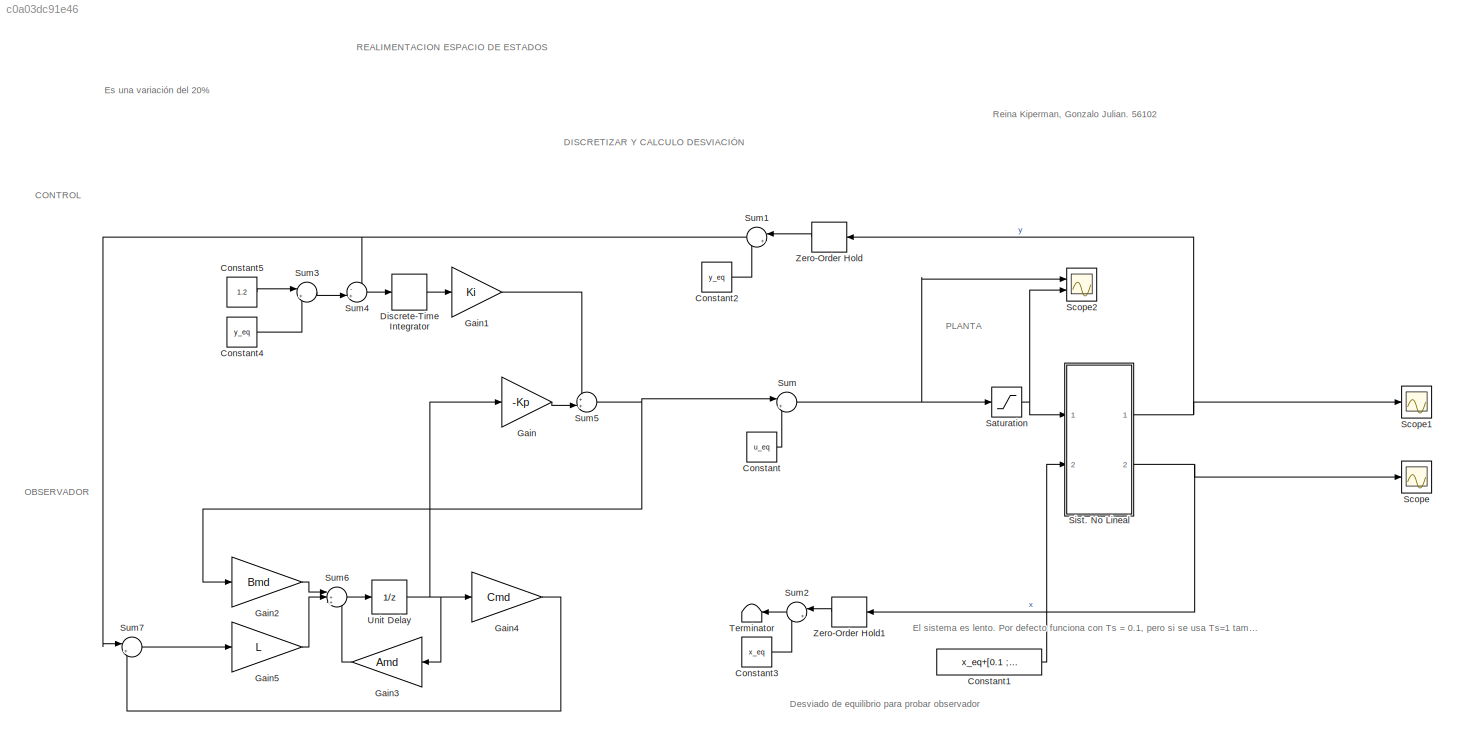
MODEL slx_c0a03dc91e46
KIND model
CONFIG AbsTol = auto
CONFIG EnableMultiTasking = off
CONFIG FixedStep = 0.001
CONFIG MaxStep = auto
CONFIG MinStep = auto
CONFIG RelTol = 1e-3
CONFIG SampleTimeConstraint = Unconstrained
CONFIG Solver = ode45
CONFIG SolverName = ode45
CONFIG StartTime = 0.0
CONFIG StopTime = 25
BLOCK [Constant] Constant
  Value = u_eq
BLOCK [Constant] Constant1
  Value = x_eq+[0.1 ;0.1; 0.1]
BLOCK [Constant] Constant2
  Value = y_eq
BLOCK [Constant] Constant3
  Value = x_eq
BLOCK [Constant] Constant4
  Value = y_eq
BLOCK [Constant] Constant5
  Value = 1.2
BLOCK [DiscreteIntegrator] Discrete-Time Integrator
  ICPrevOutput = DiscIntNeverNeededParam
  ICPrevScaledInput = DiscIntNeverNeededParam
  InitialConditionSetting = Auto
  Ports = [1, 1]
  SampleTime = Ts
BLOCK [Gain] Gain
  Gain = -Kp
  Multiplication = Matrix(K*u)
BLOCK [Gain] Gain1
  Gain = Ki
  Multiplication = Matrix(K*u)
BLOCK [Gain] Gain2
  Gain = Bmd
  Multiplication = Matrix(K*u)
BLOCK [Gain] Gain3
  Gain = Amd
  Multiplication = Matrix(K*u)
BLOCK [Gain] Gain4
  Gain = Cmd
  Multiplication = Matrix(K*u)
BLOCK [Gain] Gain5
  Gain = L
  Multiplication = Matrix(K*u)
BLOCK [Saturate] Saturation
  LowerLimit = 0
  UpperLimit = 2
BLOCK [Scope] Scope
  Floating = off
  NumInputPorts = 1
  Ports = [1]
  ScopeSpecificationString = Simulink.scopes.TimeScopeBlockCfg('CurrentConfiguration', extmgr.ConfigurationSet(extmgr.Configuration('Core','General UI',true),extmgr.Configuration('Core','Source UI',true),extmgr.Configuration('Sources','WiredSimulink',true),extmgr.Configuration('Visuals','Time Domain',true,'SerializedDisplays',{struct('MinYLimReal','0.56359','MaxYLimReal','5.32385','YLabelReal','','MinYLimMag','0.56359','MaxYL...<+1387ch>
BLOCK [Scope] Scope1
  Floating = off
  NumInputPorts = 1
  Ports = [1]
  ScopeSpecificationString = Simulink.scopes.TimeScopeBlockCfg('CurrentConfiguration', extmgr.ConfigurationSet(extmgr.Configuration('Core','General UI',true),extmgr.Configuration('Core','Source UI',true),extmgr.Configuration('Sources','WiredSimulink',true,'DataLoggingVariableName','ScopeData1'),extmgr.Configuration('Visuals','Time Domain',true,'SerializedDisplays',{struct('MinYLimReal','0.99326','MaxYLimReal','1.2568','YLabel...<+1354ch>
BLOCK [Scope] Scope2
  Floating = off
  NumInputPorts = 2
  Ports = [2]
  ScopeSpecificationString = Simulink.scopes.TimeScopeBlockCfg('CurrentConfiguration', extmgr.ConfigurationSet(extmgr.Configuration('Core','General UI',true),extmgr.Configuration('Core','Source UI',true),extmgr.Configuration('Sources','WiredSimulink',true,'DataLoggingVariableName','ScopeData2'),extmgr.Configuration('Visuals','Time Domain',true,'SerializedDisplays',{struct('MinYLimReal','0.36692','MaxYLimReal','2.03374','YLabe...<+2026ch>
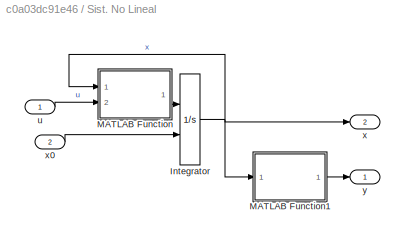
BLOCK [SubSystem] Sist. No Lineal 
  Ports = [2, 2]
  RequestExecContextInheritance = off
BLOCK [Integrator] Sist. No Lineal /Integrator
  InitialConditionSource = external
  Ports = [2, 1]
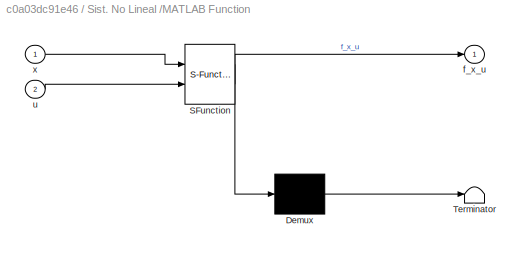
BLOCK [SubSystem] Sist. No Lineal /MATLAB Function
  ErrorFcn = Stateflow.Translate.translate
  PermitHierarchicalResolution = ExplicitOnly
  Ports = [2, 1]
  RequestExecContextInheritance = off
  SFBlockType = MATLAB Function
  TreatAsAtomicUnit = on
BLOCK [Demux] Sist. No Lineal /MATLAB Function/ Demux 
  Outputs = 1
  Ports = [1, 1]
BLOCK [S-Function] Sist. No Lineal /MATLAB Function/ SFunction 
  EnableBusSupport = on
  FunctionName = sf_sfun
  PortCounts = [2 2]
  Ports = [2, 2]
  SFcnIsStateOwnerBlock = off
  SFunctionDeploymentMode = off
  Tag = Stateflow S-Function realimentacion_espacio_estados_exportado2018 1
BLOCK [Terminator] Sist. No Lineal /MATLAB Function/ Terminator 
BLOCK [Outport] Sist. No Lineal /MATLAB Function/f_x_u
  VectorParamsAs1DForOutWhenUnconnected = off
BLOCK [Inport] Sist. No Lineal /MATLAB Function/u
  Port = 2
BLOCK [Inport] Sist. No Lineal /MATLAB Function/x
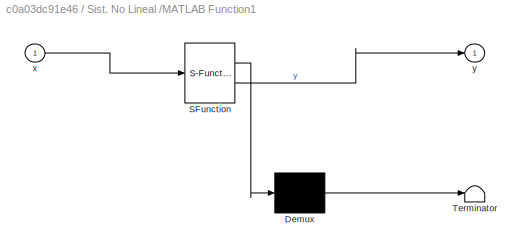
BLOCK [SubSystem] Sist. No Lineal /MATLAB Function1
  ErrorFcn = Stateflow.Translate.translate
  PermitHierarchicalResolution = ExplicitOnly
  Ports = [1, 1]
  RequestExecContextInheritance = off
  SFBlockType = MATLAB Function
  TreatAsAtomicUnit = on
BLOCK [Demux] Sist. No Lineal /MATLAB Function1/ Demux 
  Outputs = 1
  Ports = [1, 1]
BLOCK [S-Function] Sist. No Lineal /MATLAB Function1/ SFunction 
  EnableBusSupport = on
  FunctionName = sf_sfun
  PortCounts = [1 2]
  Ports = [1, 2]
  SFcnIsStateOwnerBlock = off
  SFunctionDeploymentMode = off
  Tag = Stateflow S-Function realimentacion_espacio_estados_exportado2018 2
BLOCK [Terminator] Sist. No Lineal /MATLAB Function1/ Terminator 
BLOCK [Inport] Sist. No Lineal /MATLAB Function1/x
BLOCK [Outport] Sist. No Lineal /MATLAB Function1/y
BLOCK [Inport] Sist. No Lineal /u
BLOCK [Outport] Sist. No Lineal /x
  Port = 2
  VectorParamsAs1DForOutWhenUnconnected = off
BLOCK [Inport] Sist. No Lineal /x0
  Port = 2
BLOCK [Outport] Sist. No Lineal /y
  VectorParamsAs1DForOutWhenUnconnected = off
BLOCK [Sum] Sum
  Inputs = |++
  Ports = [2, 1]
BLOCK [Sum] Sum1
  Inputs = |+-
  Ports = [2, 1]
BLOCK [Sum] Sum2
  Inputs = |+-
  Ports = [2, 1]
BLOCK [Sum] Sum3
  Inputs = |+-
  Ports = [2, 1]
BLOCK [Sum] Sum4
  Inputs = -+|
  Ports = [2, 1]
BLOCK [Sum] Sum5
  Inputs = ++|
  Ports = [2, 1]
BLOCK [Sum] Sum6
  Inputs = |+++
  Ports = [3, 1]
BLOCK [Sum] Sum7
  Inputs = |+-
  Ports = [2, 1]
BLOCK [Terminator] Terminator
BLOCK [UnitDelay] Unit Delay
  HasFrameUpgradeWarning = on
  SampleTime = Ts
BLOCK [ZeroOrderHold] Zero-Order Hold
  SampleTime = Ts
BLOCK [ZeroOrderHold] Zero-Order Hold1
  SampleTime = Ts
ANNOTATION (root): REALIMENTACION ESPACIO DE ESTADOS
ANNOTATION (root): CONTROL
ANNOTATION (root): DISCRETIZAR Y CALCULO DESVIACIÓN
ANNOTATION (root): Desviado de equilibrio para probar observador
ANNOTATION (root): El sistema es lento. Por defecto funciona con Ts = 0.1, pero si se usa Ts=1 también funciona
ANNOTATION (root): Es una variación del 20%
ANNOTATION (root): OBSERVADOR
ANNOTATION (root): PLANTA
ANNOTATION (root): Reina Kiperman, Gonzalo Julian. 56102
LINE Constant1:1 -> Sist. No Lineal :2
LINE Constant2:1 -> Sum1:2
LINE Constant3:1 -> Sum2:2
LINE Constant4:1 -> Sum3:2
LINE Constant5:1 -> Sum3:1
LINE Constant:1 -> Sum:2
LINE Discrete-Time Integrator:1 -> Gain1:1
LINE Gain1:1 -> Sum5:1
LINE Gain2:1 -> Sum6:1
LINE Gain3:1 -> Sum6:3
LINE Gain4:1 -> Sum7:2
LINE Gain5:1 -> Sum6:2
LINE Gain:1 -> Sum5:2
NET Saturation:1 -> Scope2:2, Sist. No Lineal :1
NET Sist. No Lineal /Integrator:1 -> Sist. No Lineal /MATLAB Function1:1, Sist. No Lineal /MATLAB Function:1, Sist. No Lineal /x:1
LINE Sist. No Lineal /MATLAB Function1:1 -> Sist. No Lineal /y:1
LINE Sist. No Lineal /MATLAB Function:1 -> Sist. No Lineal /Integrator:1
LINE Sist. No Lineal /u:1 -> Sist. No Lineal /MATLAB Function:2
LINE Sist. No Lineal /x0:1 -> Sist. No Lineal /Integrator:2
NET Sist. No Lineal :1 -> Scope1:1, Zero-Order Hold:1
NET Sist. No Lineal :2 -> Scope:1, Zero-Order Hold1:1
NET Sum1:1 -> Sum4:1, Sum7:1
LINE Sum2:1 -> Terminator:1
LINE Sum3:1 -> Sum4:2
LINE Sum4:1 -> Discrete-Time Integrator:1
NET Sum5:1 -> Gain2:1, Sum:1
LINE Sum6:1 -> Unit Delay:1
LINE Sum7:1 -> Gain5:1
NET Sum:1 -> Saturation:1, Scope2:1
NET Unit Delay:1 -> Gain3:1, Gain4:1, Gain:1
LINE Zero-Order Hold1:1 -> Sum2:1
LINE Zero-Order Hold:1 -> Sum1:1
note: NET lines group one-source signal fan-out (src -> all destinations, sorted); 1:1 wires keep LINE
CHART Sist.
No Lineal
/MATLAB Function states=1 transitions=1
  STATE_LABEL 'eML_blk_kernel()'
  STATE_LABEL 'SCRIPT:\nfunction f_x_u = f(x,u)\n\nH_1 = x(1);\nH_2 = x(2);\nH_3 = x(3);\nQ_i = u;\n\nH_1_dot_eq = Q_i - sqrt(H_1-H_2);\nH_2_dot_eq = sqrt(H_1-H_2)-sqrt(H_2-H_3);\nH_3_dot_eq = sqrt(H_2-H_3)-sqrt(H_3);\n\nf_x_u = [H_1_dot_eq ; H_2_dot_eq ; H_3_dot_eq];\n\n\n\n'
CHART Sist.
No Lineal
/MATLAB Function1 states=1 transitions=1
  STATE_LABEL 'eML_blk_kernel()'
  STATE_LABEL 'SCRIPT:\nfunction y = fcn(x)\n    H_3 = x(3);\n    y = sqrt(H_3);\n'
